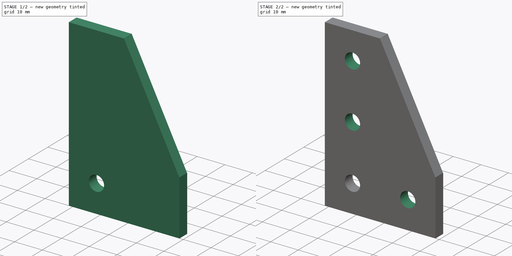
[diagram: build sequence overview — one tinted view per stage of 2, left to right]
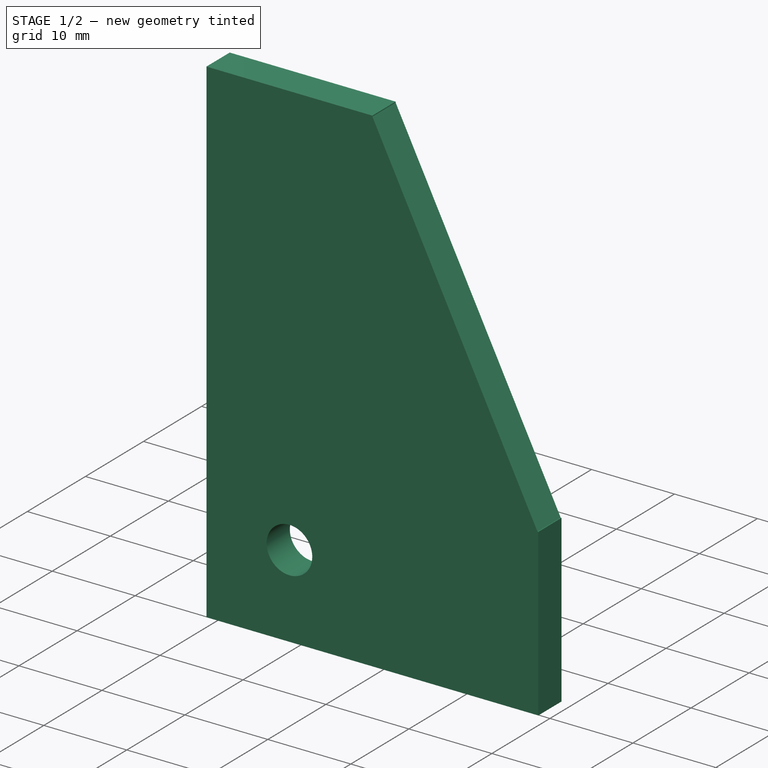
[diagram: stage 1 of 2 — iso view after this stage's code; geometry added in this stage tinted green]
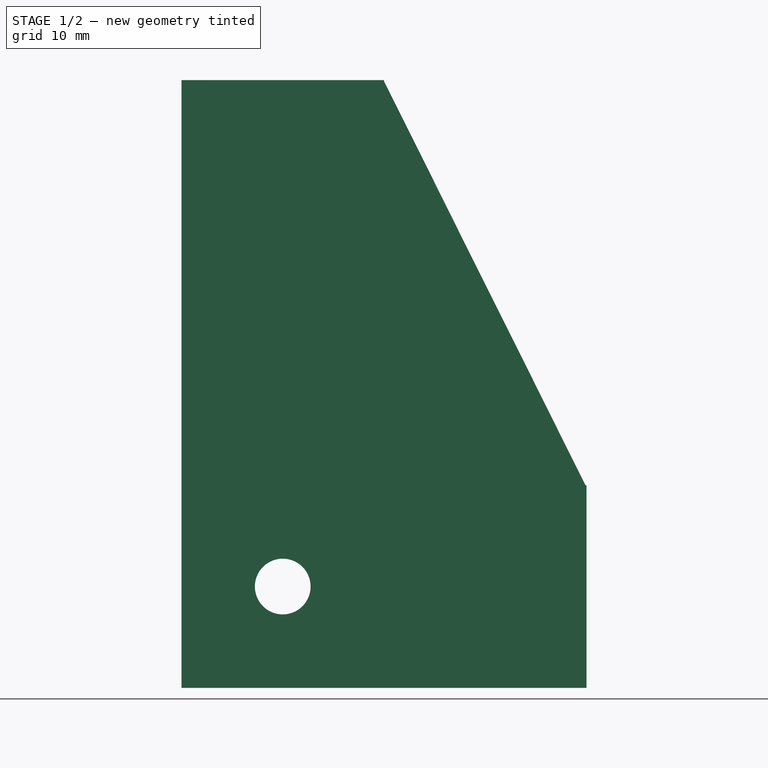
[diagram: stage 1 of 2 — front view after this stage's code; geometry added in this stage tinted green]
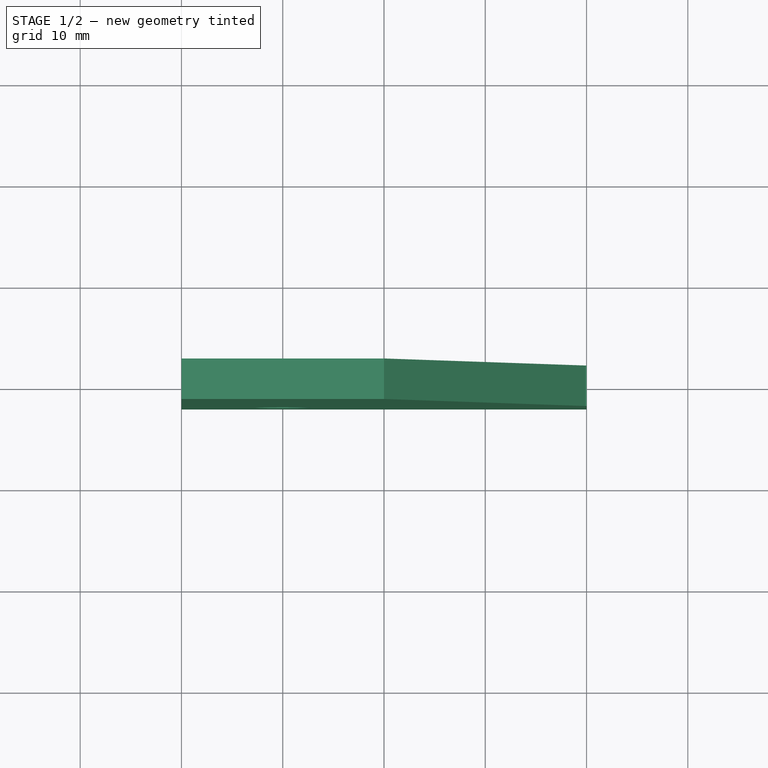
[diagram: stage 1 of 2 — top view after this stage's code; geometry added in this stage tinted green]
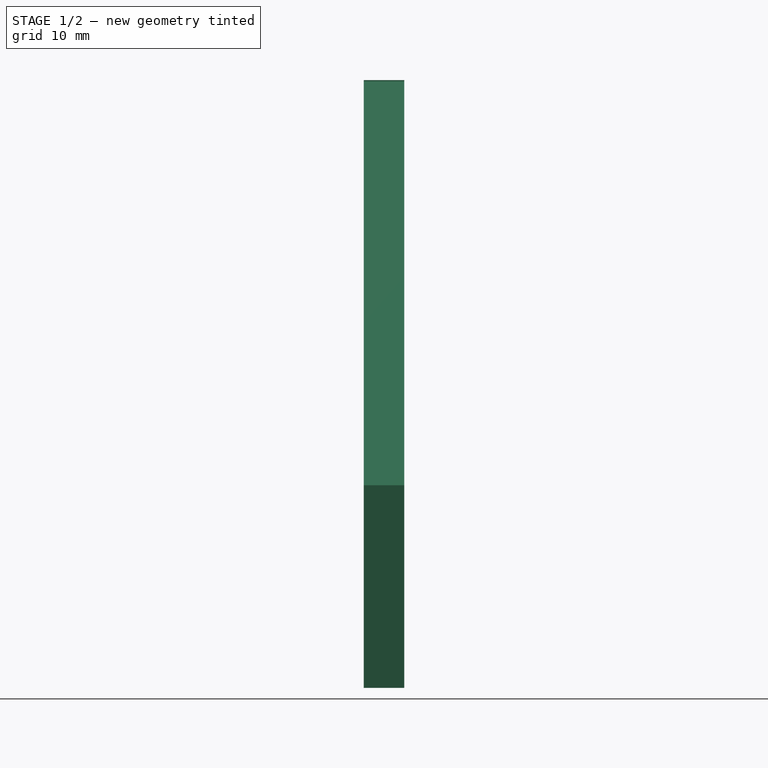
[diagram: stage 1 of 2 — right view after this stage's code; geometry added in this stage tinted green]
FCSTD DOCUMENT  (FreeCAD 0.21R30492 (Git))
Label: L-shape_brackets
License: Creative Commons Attribution-NonCommercial-ShareAlike
LicenseURL: http://creativecommons.org/licenses/by-nc-sa/4.0/
objects: Sketcher::SketchObject×2, PartDesign::LinearPattern×2, Spreadsheet::Sheet×1, PartDesign::Pad×1, PartDesign::Hole×1, PartDesign::Body×1, App::Part×1
note: 9 computed .brp shape members not serialized (recipe doc carries the construction recipe); baked Part::Feature solids carry a one-line shape summary decoded from their .brp

FEATURE [Sketcher::SketchObject] Sketch
  FullyConstrained = true
  MapMode = 5
  Placement = pos=(0,0,0) rot=(1,0,0;1.5708rad)
  Support = -> [XZ_Plane001]
  expr: Constraints[15] = <<Spreadsheet>>.Profile_size
  expr: Constraints[16] = <<Spreadsheet>>.Width
  expr: Constraints[17] = <<Spreadsheet>>.Height
  expr: Constraints[18] = <<Spreadsheet>>.ch_W
  expr: Constraints[19] = <<Spreadsheet>>.ch_H
  sketch-geometry (7):
    g0: LineSegment StartX=0 StartY=0 StartZ=0 EndX=40 EndY=0 EndZ=0
    g1: LineSegment StartX=40 StartY=0 StartZ=0 EndX=40 EndY=20 EndZ=0
    g2: LineSegment StartX=40 StartY=20 StartZ=0 EndX=39.9 EndY=20 EndZ=0
    g3: LineSegment StartX=39.9 StartY=20 StartZ=0 EndX=20 EndY=59.9 EndZ=0
    g4: LineSegment StartX=20 StartY=59.9 StartZ=0 EndX=20 EndY=60 EndZ=0
    g5: LineSegment StartX=20 StartY=60 StartZ=0 EndX=0 EndY=60 EndZ=0
    g6: LineSegment StartX=0 StartY=60 StartZ=0 EndX=0 EndY=0 EndZ=0
  constraints (20):
    c: Coincident(g-1,g0)
    c: PointOnObject(g0,g-1)
    c: Coincident(g0,g1)
    c: Vertical(g1)
    c: Coincident(g1,g2)
    c: Horizontal(g2)
    c: Coincident(g2,g3)
    c: Coincident(g3,g4)
    c: Vertical(g4)
    c: Coincident(g4,g5)
    c: Coincident(g5,g6)
    c: Coincident(g6,g0)
    c: Vertical(g6)
    c: Horizontal(g5)
    c: Equal(g1,g5)
    c: DistanceX(g5,g5) = 20
    c: DistanceX(g0,g0) = 40
    c: DistanceY(g6,g6) = 60
    c: DistanceX(g3,g3) = 19.9
    c: DistanceY(g3,g3) = 39.9
FEATURE [Spreadsheet::Sheet] Spreadsheet
  cells = A1=Collection of L shape corner brackets to be used wth T slot Aluminum profiles; A4=Profile size:; B4(Profile_size)=20; C4=Could be: 20, 30, 40; A6=Model; B6=Width; C6=Height; D6=Chamfer Width; E6=Chamfer Height; F6=Horizontal holes; G6=Vertical holes; H6=Hole size; A7==hiddenref(Part.shapeType.String); B7(Width)==.B10; C7(Height)==.C10; D7(ch_W)==.D10; E7(ch_H)==.E10; F7(holesH)==.F10; G7(holesV)==.G10; H7(hole_size)==.H10; A8=Short 1; B8==2 * B4; C8==3 * B4; D8=0.1; E8=0.1; F8=2; G8=3; H8=M5; A9=Short 2; B9==2 * B4; C9==3 * B4; D9==B4 - 0.1; E9==B4; F9=2; G9=3; H9=M5; A10=Short 3; B10==2 * B4; C10==3 * B4; D10==B4 - 0.1; E10==2 * B4 - 0.1; F10=2; G10=3; H10=M5; A11=Uniform 1; B11==3 * B4; C11==3 * B4; D11=0.1; E11=0.1; F11=3; G11=3; H11=M5; A12=Uniform 2; B12==3 * B4; C12==3 * B4; D12==B4; E12==B4; F12=3; G12=3; H12=M5; A13=Uniform 3; B13==3 * B4; C13==3 * B4; D13==2 * B4 - 0.1; E13==2 * B4 - 0.1; F13=3; G13=3; H13=M5
  expr: .cells.Bind.B7.ZZ7 = tuple(.cells; <<B>> + str(hiddenref(Part.shapeType) + 8); <<ZZ>> + str(hiddenref(Part.shapeType) + 8))
FEATURE [PartDesign::Pad] Pad
  Direction = (0,-1,-2e-16)
  Length = 4
  Length2 = 10
  Midplane = true
  Placement = pos=(0,0,0) rot=(1,0,0;1.5708rad)
  Profile = -> Sketch
  ReferenceAxis = -> Sketch [N_Axis]
  Type = 0
FEATURE [Sketcher::SketchObject] Sketch001
  FullyConstrained = true
  MapMode = 5
  Placement = pos=(0,-2,-4e-16) rot=(1,0,0;1.5708rad)
  Support = -> [Pad]
  expr: Constraints[4] = sqrt(2) * <<Spreadsheet>>.Profile_size / 2
  sketch-geometry (2):
    g0: Circle CenterX=10 CenterY=10 CenterZ=0 NormalX=0 NormalY=0 NormalZ=1 AngleXU=0 Radius=2.5
    g1: LineSegment StartX=0 StartY=0 StartZ=0 EndX=10 EndY=10 EndZ=0
  constraints (5):
    c: Coincident(g1,g-1)
    c: Coincident(g1,g0)
    c: Angle(g1) = 0.785398
    c: Diameter(g0) = 5
    c: Distance(g1) = 14.1421
FEATURE [PartDesign::Hole] Hole
  BaseFeature = -> Pad
  CustomThreadClearance = 0
  Depth = 5
  DepthType = 0
  Diameter = 5.5
  DrillForDepth = false
  DrillPoint = 1
  DrillPointAngle = 118
  HoleCutCountersinkAngle = 90
  HoleCutCustomValues = false
  HoleCutDepth = 0
  HoleCutDiameter = 6.1
  HoleCutType = 0
  ModelThread = false
  Placement = pos=(0,0,0) rot=(1,0,0;1.5708rad)
  Profile = -> Sketch001
  Tapered = false
  TaperedAngle = 90
  ThreadClass = 0
  ThreadDepth = 5
  ThreadDepthType = 0
  ThreadDirection = 0
  ThreadFit = 0
  ThreadSize = 13
  ThreadType = 1
  Threaded = false
  UseCustomThreadClearance = false
  expr: ThreadSize = Spreadsheet.hole_size
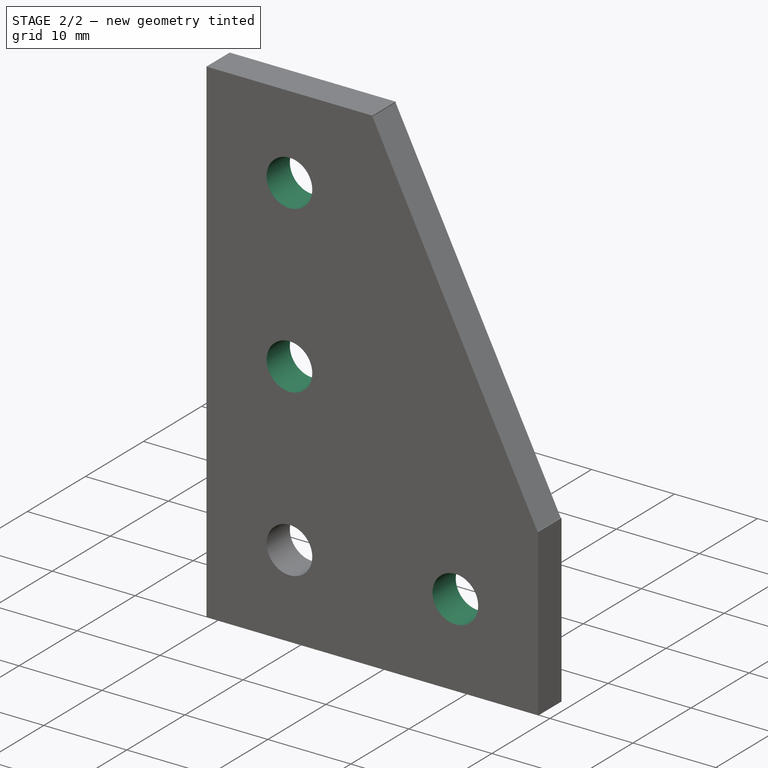
[diagram: stage 2 of 2 — iso view after this stage's code; geometry added in this stage tinted green]
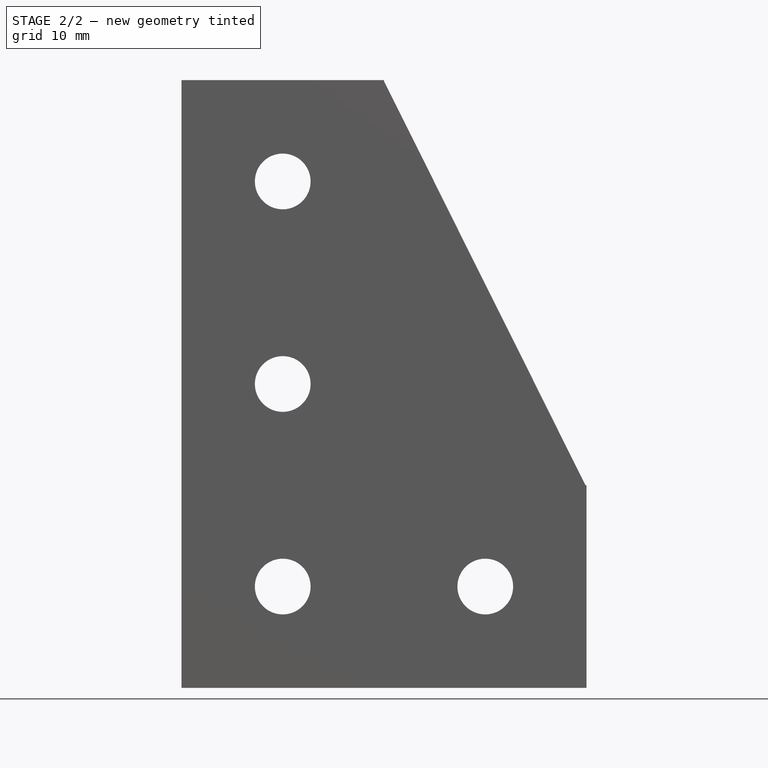
[diagram: stage 2 of 2 — front view after this stage's code; geometry added in this stage tinted green]
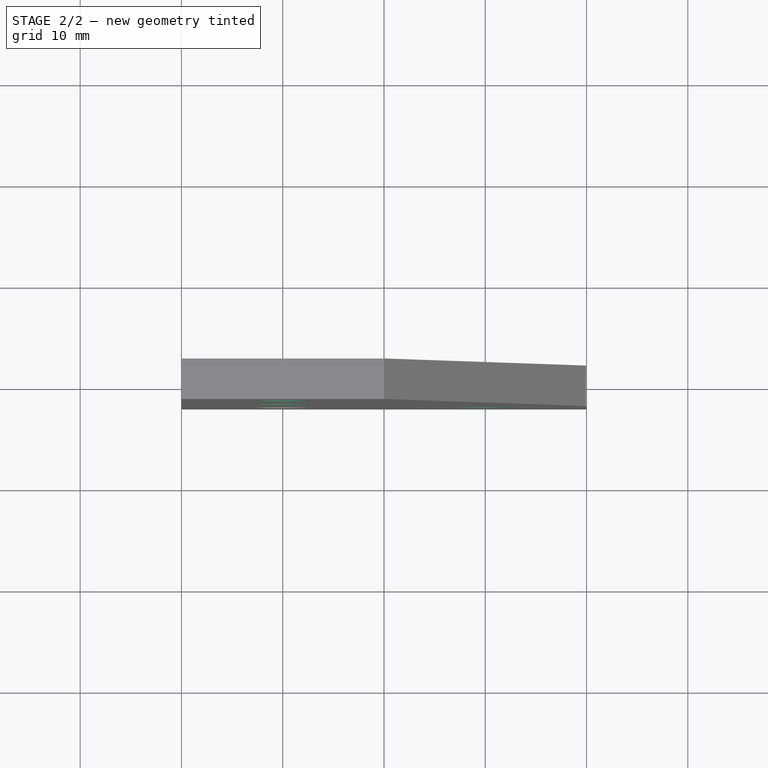
[diagram: stage 2 of 2 — top view after this stage's code; geometry added in this stage tinted green]
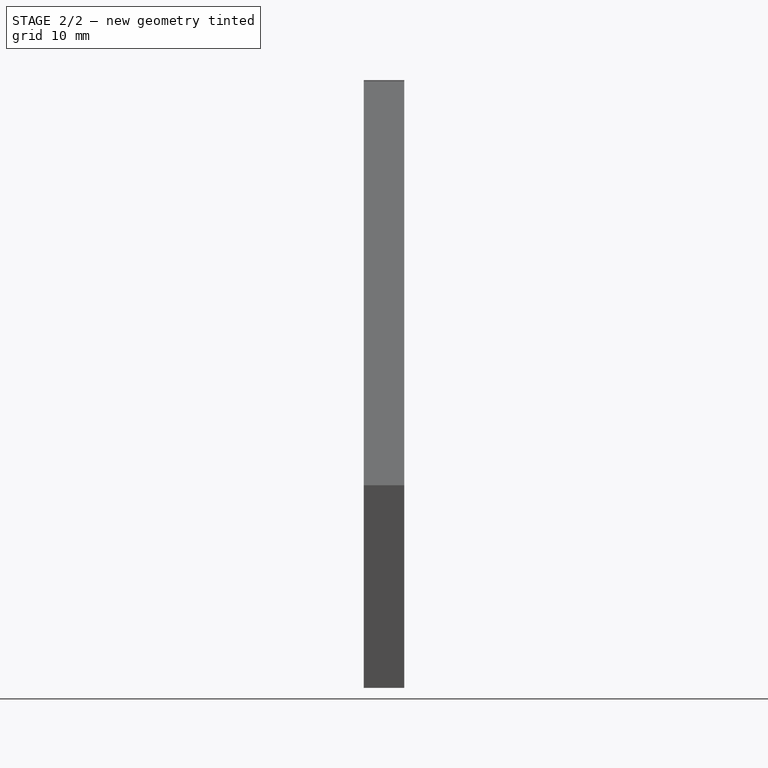
[diagram: stage 2 of 2 — right view after this stage's code; geometry added in this stage tinted green]
FEATURE [PartDesign::LinearPattern] LinearPattern
  BaseFeature = -> Hole
  Direction = -> Sketch001 [H_Axis]
  Length = 20
  Occurrences = 2
  Originals = -> [Hole]
  Placement = pos=(0,0,0) rot=(1,0,0;1.5708rad)
  expr: Length = <<Spreadsheet>>.Profile_size * (Spreadsheet.holesH - 1)
  expr: Occurrences = Spreadsheet.holesH
FEATURE [PartDesign::LinearPattern] LinearPattern001
  BaseFeature = -> LinearPattern
  Direction = -> Sketch001 [V_Axis]
  Length = 40
  Occurrences = 3
  Originals = -> [Hole]
  Placement = pos=(0,0,0) rot=(1,0,0;1.5708rad)
  expr: Length = <<Spreadsheet>>.Profile_size * (Spreadsheet.holesV - 1)
  expr: Occurrences = Spreadsheet.holesV
FEATURE [PartDesign::Body] Body
  Group = -> [Sketch,Pad,Sketch001,Hole,LinearPattern,LinearPattern001]
  Origin = -> Origin001
  Tip = -> LinearPattern001
FEATURE [App::Part] Part  label="L shape bracket"
  Group = -> [Body]
  Origin = -> Origin
  shapeType = 2
  expr: .shapeType.Enum = Spreadsheet.cells[<<A8:|>>]
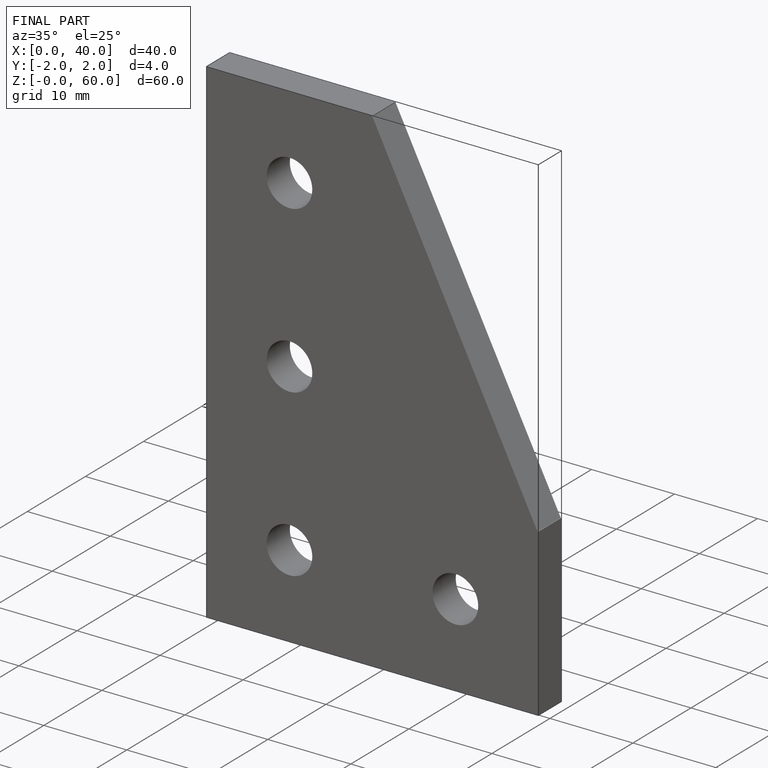
[diagram: finished part — iso view with bounding-box wireframe]
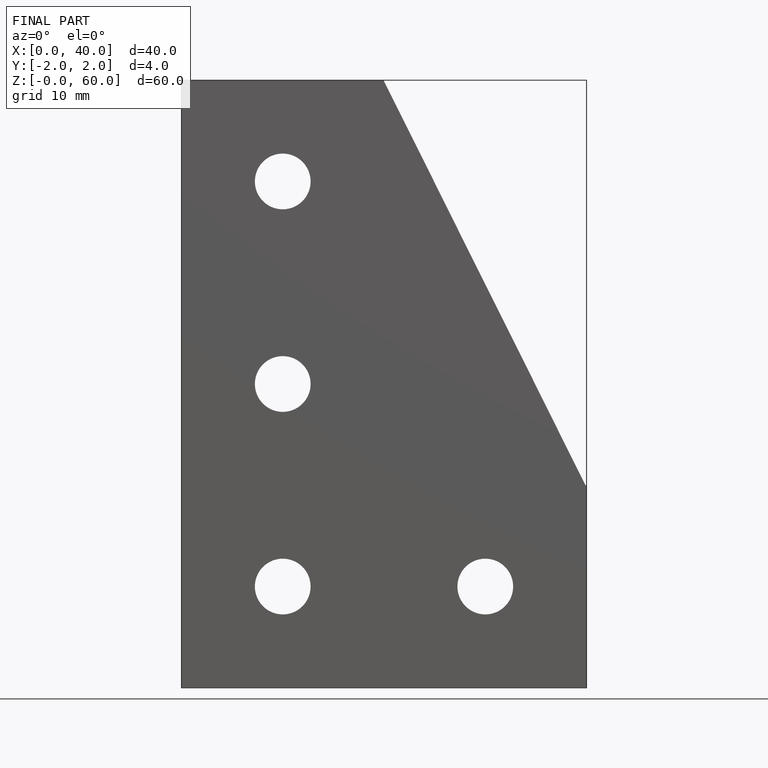
[diagram: finished part — front view with bounding-box wireframe]
